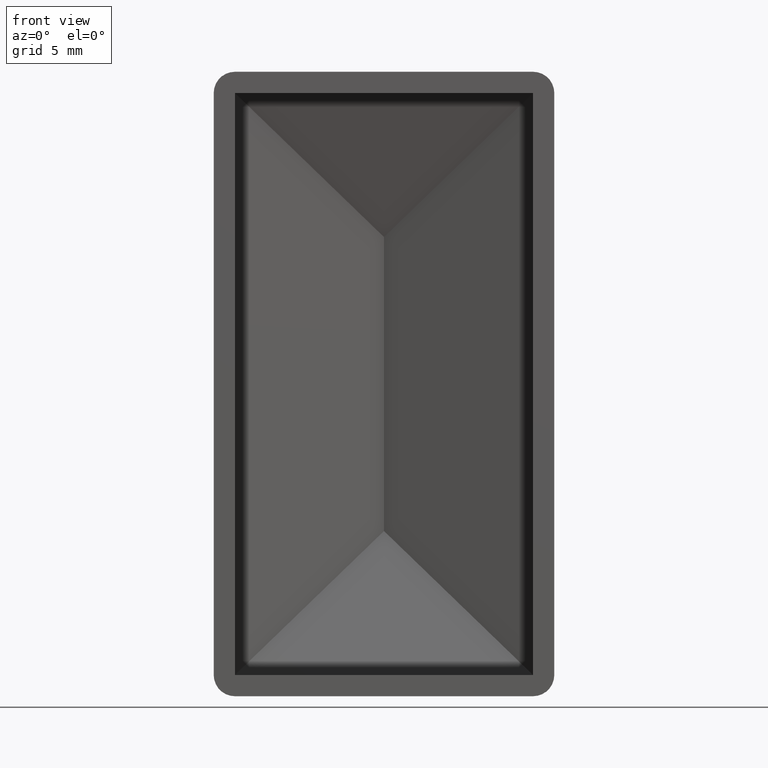
[diagram: clean part render]
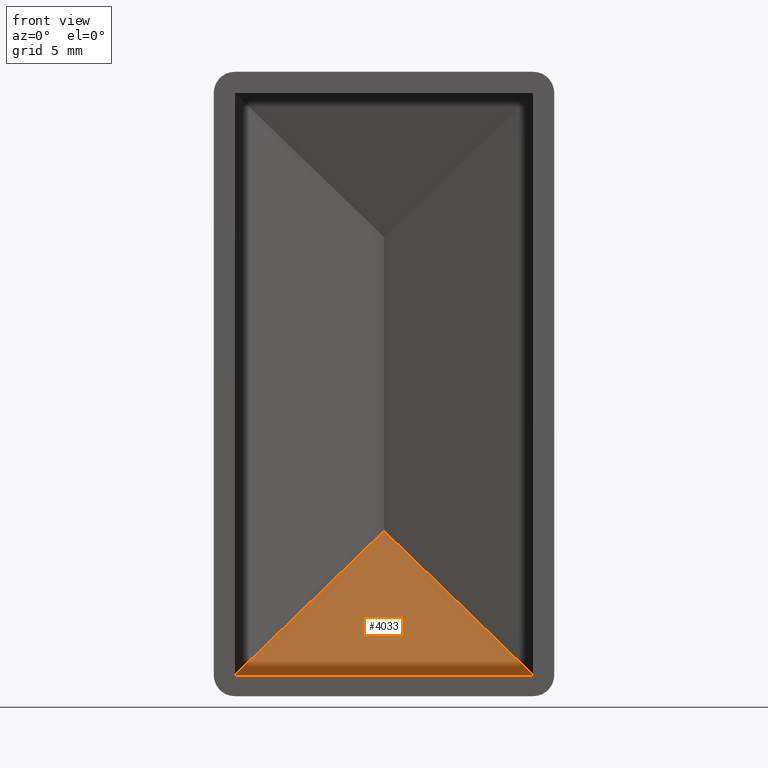
[diagram: same view with one face highlighted and labeled with its STEP entity id]
A machine part, front view. The second image highlights one B-rep face of the part: STEP entity #4033.
In plain terms, the highlighted planar face has unit normal (0, -0.955, 0.2965).
Its self-contained STEP definition (entity closure, byte-faithful):
#655 = EDGE_CURVE ( 'NONE', #5232, #2281, #2084, .T. ) ;
#1183 = CARTESIAN_POINT ( 'NONE',  ( -12.00000000000000533, 7.350000000000009415, -20.49999999999999645 ) ) ;
#2041 = LINE ( 'NONE', #4732, #2873 ) ;
#2084 = LINE ( 'NONE', #8011, #6867 ) ;
#2281 = VERTEX_POINT ( 'NONE', #12252 ) ;
#2873 = VECTOR ( 'NONE', #13460, 1000.000000000000000 ) ;
#2890 = PLANE ( 'NONE',  #4607 ) ;
#3683 = EDGE_CURVE ( 'NONE', #5232, #5365, #2041, .T. ) ;
#3854 = CARTESIAN_POINT ( 'NONE',  ( 5.421010862427527100E-17, 10.50000000000000000, -10.35534212095575590 ) ) ;
#4033 = ADVANCED_FACE ( 'NONE', ( #9545 ), #2890, .T. ) ;
#4607 = AXIS2_PLACEMENT_3D ( 'NONE', #5091, #6099, #9486 ) ;
#4732 = CARTESIAN_POINT ( 'NONE',  ( -11.21621681187844288, 7.135134956436475662, -21.19197852606920662 ) ) ;
#5091 = CARTESIAN_POINT ( 'NONE',  ( -12.00000000000000533, 7.350000000000011191, -20.49999999999999645 ) ) ;
#5232 = VERTEX_POINT ( 'NONE', #3854 ) ;
#5360 = DIRECTION ( 'NONE',  ( 1.000000000000000000, 0.000000000000000000, -0.000000000000000000 ) ) ;
#5365 = VERTEX_POINT ( 'NONE', #7641 ) ;
#5590 = EDGE_LOOP ( 'NONE', ( #13453, #11096, #11258 ) ) ;
#6099 = DIRECTION ( 'NONE',  ( 0.000000000000000000, -0.9550199444571862983, 0.2965415749755721531 ) ) ;
#6203 = VECTOR ( 'NONE', #5360, 1000.000000000000000 ) ;
#6867 = VECTOR ( 'NONE', #12522, 1000.000000000000114 ) ;
#7641 = CARTESIAN_POINT ( 'NONE',  ( -10.50000000000000000, 7.350000000000007638, -20.50000000000000355 ) ) ;
#8011 = CARTESIAN_POINT ( 'NONE',  ( -0.6195615678548944683, 10.68586847035646947, -9.756747821823166689 ) ) ;
#9486 = DIRECTION ( 'NONE',  ( 0.000000000000000000, -0.2965415749755720976, -0.9550199444571861873 ) ) ;
#9545 = FACE_OUTER_BOUND ( 'NONE', #5590, .T. ) ;
#11096 = ORIENTED_EDGE ( 'NONE', *, *, #12478, .T. ) ;
#11258 = ORIENTED_EDGE ( 'NONE', *, *, #655, .F. ) ;
#12252 = CARTESIAN_POINT ( 'NONE',  ( 10.49999999999999467, 7.350000000000011191, -20.50000000000000000 ) ) ;
#12478 = EDGE_CURVE ( 'NONE', #5365, #2281, #13571, .T. ) ;
#12522 = DIRECTION ( 'NONE',  ( 0.7029955450421475627, -0.2108986635126437192, -0.6792046947566503512 ) ) ;
#13453 = ORIENTED_EDGE ( 'NONE', *, *, #3683, .T. ) ;
#13460 = DIRECTION ( 'NONE',  ( -0.7029955450421475627, -0.2108986635126437470, -0.6792046947566503512 ) ) ;
#13571 = LINE ( 'NONE', #1183, #6203 ) ;